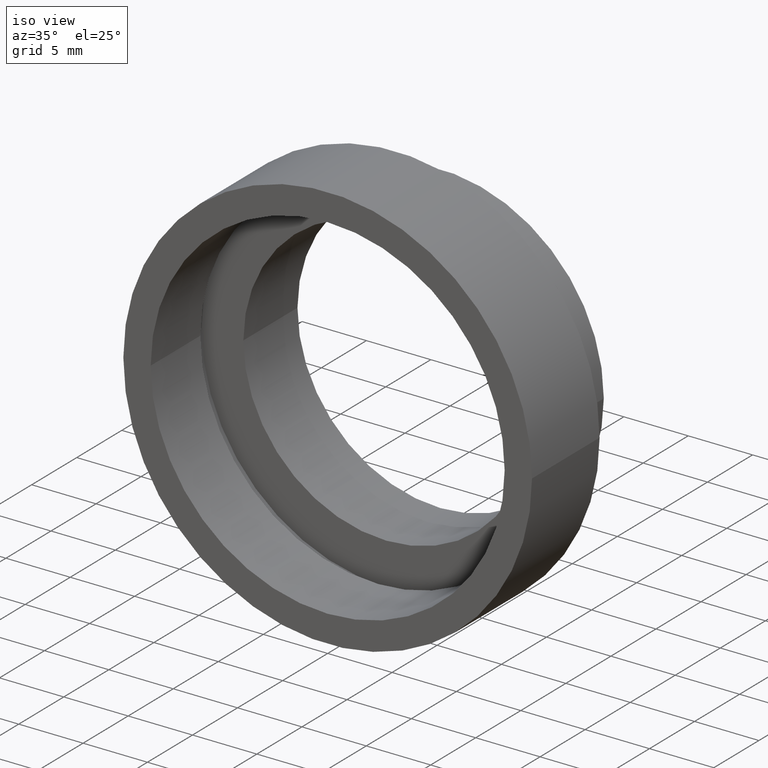
[diagram: clean part render]
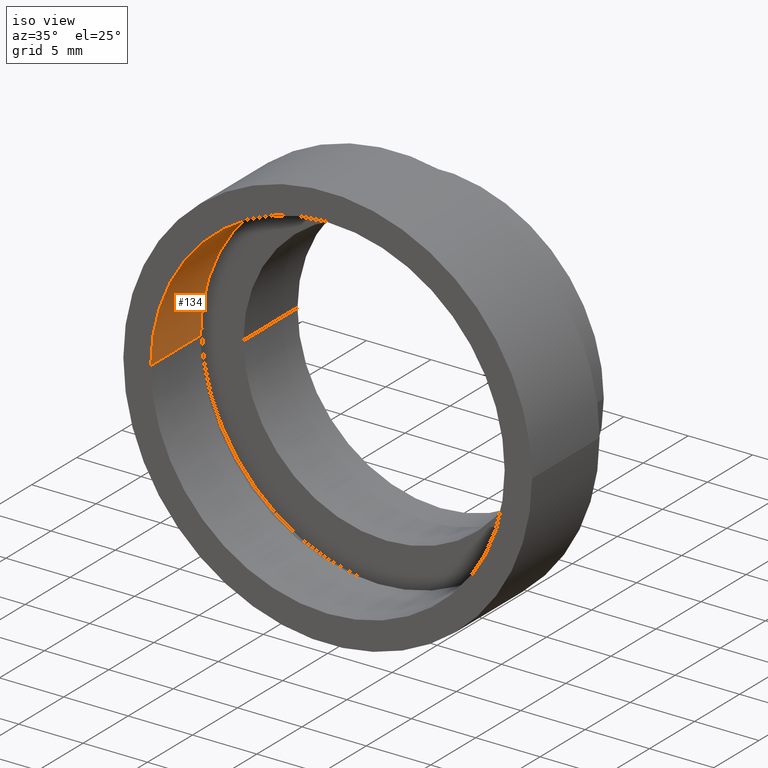
[diagram: same view with one face highlighted and labeled with its STEP entity id]
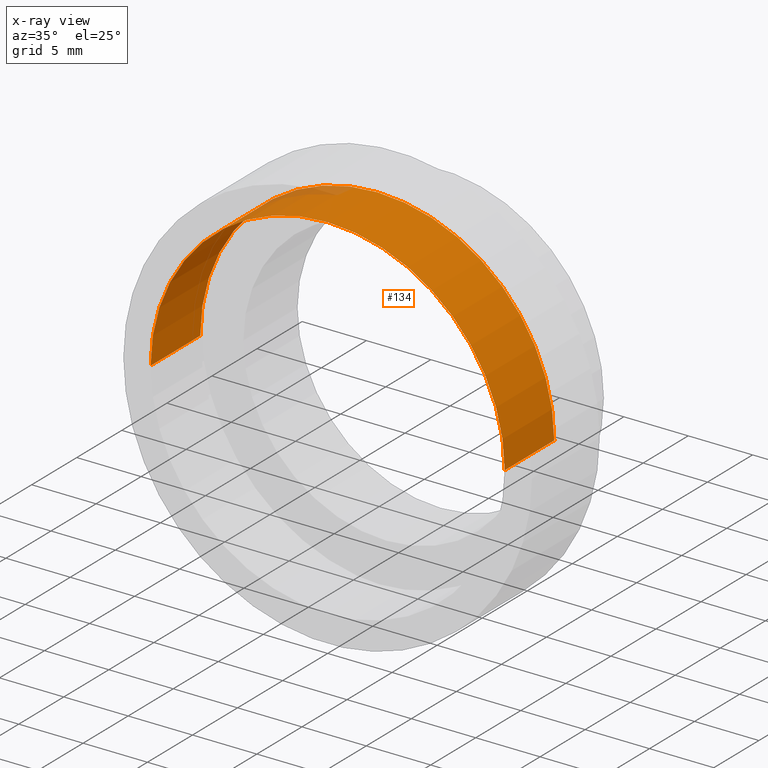
[diagram: x-ray of the same camera — body ghosted, the highlighted face saturated]
A machine part, iso view. The second image highlights one B-rep face of the part: STEP entity #134.
The next image is the same camera in x-ray: the body ghosted, the highlighted face saturated — about 2% of this face is hidden behind the body in this view.
In plain terms, the highlighted cylindrical surface (partial cylindrical patch) has radius 13.75 mm, axis along (-0, 1, -0).
Its self-contained STEP definition (entity closure, byte-faithful):
#10 = ORIENTED_EDGE ( 'NONE', *, *, #478, .F. ) ;
#57 = EDGE_CURVE ( 'NONE', #304, #71, #415, .T. ) ;
#65 = LINE ( 'NONE', #195, #581 ) ;
#71 = VERTEX_POINT ( 'NONE', #274 ) ;
#88 = ORIENTED_EDGE ( 'NONE', *, *, #251, .T. ) ;
#107 = CARTESIAN_POINT ( 'NONE',  ( 13.75000000000000400, 1.683889348827607900E-015, 1.683889348827611000E-015 ) ) ;
#134 = ADVANCED_FACE ( 'NONE', ( #436 ), #403, .F. ) ;
#154 = CIRCLE ( 'NONE', #442, 13.75000000000000200 ) ;
#163 = ORIENTED_EDGE ( 'NONE', *, *, #165, .T. ) ;
#165 = EDGE_CURVE ( 'NONE', #205, #71, #154, .T. ) ;
#166 = DIRECTION ( 'NONE',  ( -1.000000000000000000, -1.224646799147351000E-016, 0.0000000000000000000 ) ) ;
#169 = AXIS2_PLACEMENT_3D ( 'NONE', #170, #328, #166 ) ;
#170 = CARTESIAN_POINT ( 'NONE',  ( 2.067940818438636100E-015, 0.0000000000000000000, 0.0000000000000000000 ) ) ;
#188 = AXIS2_PLACEMENT_3D ( 'NONE', #305, #218, #201 ) ;
#190 = DIRECTION ( 'NONE',  ( -1.224646799147351000E-016, 1.000000000000000000, -0.0000000000000000000 ) ) ;
#191 = CARTESIAN_POINT ( 'NONE',  ( 1.394385078907593200E-015, 5.499999999999996400, 0.0000000000000000000 ) ) ;
#195 = CARTESIAN_POINT ( 'NONE',  ( -13.75000000000000200, 16.88601823708207700, 0.0000000000000000000 ) ) ;
#201 = DIRECTION ( 'NONE',  ( -1.000000000000000000, 0.0000000000000000000, 0.0000000000000000000 ) ) ;
#205 = VERTEX_POINT ( 'NONE', #342 ) ;
#218 = DIRECTION ( 'NONE',  ( -1.224646799147351000E-016, 1.000000000000000000, -0.0000000000000000000 ) ) ;
#251 = EDGE_CURVE ( 'NONE', #492, #205, #65, .T. ) ;
#255 = DIRECTION ( 'NONE',  ( -1.224646799147351000E-016, 1.000000000000000000, -0.0000000000000000000 ) ) ;
#274 = CARTESIAN_POINT ( 'NONE',  ( 13.75000000000000400, 5.499999999999998200, 1.683889348827611000E-015 ) ) ;
#295 = ORIENTED_EDGE ( 'NONE', *, *, #57, .F. ) ;
#304 = VERTEX_POINT ( 'NONE', #107 ) ;
#305 = CARTESIAN_POINT ( 'NONE',  ( 0.0000000000000000000, 16.88601823708207700, 0.0000000000000000000 ) ) ;
#328 = DIRECTION ( 'NONE',  ( -1.224646799147351000E-016, 1.000000000000000000, -0.0000000000000000000 ) ) ;
#342 = CARTESIAN_POINT ( 'NONE',  ( -13.75000000000000000, 5.499999999999994700, 0.0000000000000000000 ) ) ;
#403 = CYLINDRICAL_SURFACE ( 'NONE', #188, 13.75000000000000200 ) ;
#415 = LINE ( 'NONE', #431, #571 ) ;
#431 = CARTESIAN_POINT ( 'NONE',  ( 13.75000000000000200, 16.88601823708207700, 1.683889348827611000E-015 ) ) ;
#434 = CIRCLE ( 'NONE', #169, 13.75000000000000200 ) ;
#436 = FACE_OUTER_BOUND ( 'NONE', #468, .T. ) ;
#442 = AXIS2_PLACEMENT_3D ( 'NONE', #191, #255, #541 ) ;
#468 = EDGE_LOOP ( 'NONE', ( #295, #10, #88, #163 ) ) ;
#478 = EDGE_CURVE ( 'NONE', #492, #304, #434, .T. ) ;
#492 = VERTEX_POINT ( 'NONE', #527 ) ;
#527 = CARTESIAN_POINT ( 'NONE',  ( -13.75000000000000000, -1.683889348827607900E-015, 0.0000000000000000000 ) ) ;
#530 = DIRECTION ( 'NONE',  ( -1.224646799147351000E-016, 1.000000000000000000, -0.0000000000000000000 ) ) ;
#541 = DIRECTION ( 'NONE',  ( -1.000000000000000000, -1.261617073437677800E-016, 0.0000000000000000000 ) ) ;
#571 = VECTOR ( 'NONE', #190, 1000.000000000000000 ) ;
#581 = VECTOR ( 'NONE', #530, 1000.000000000000000 ) ;